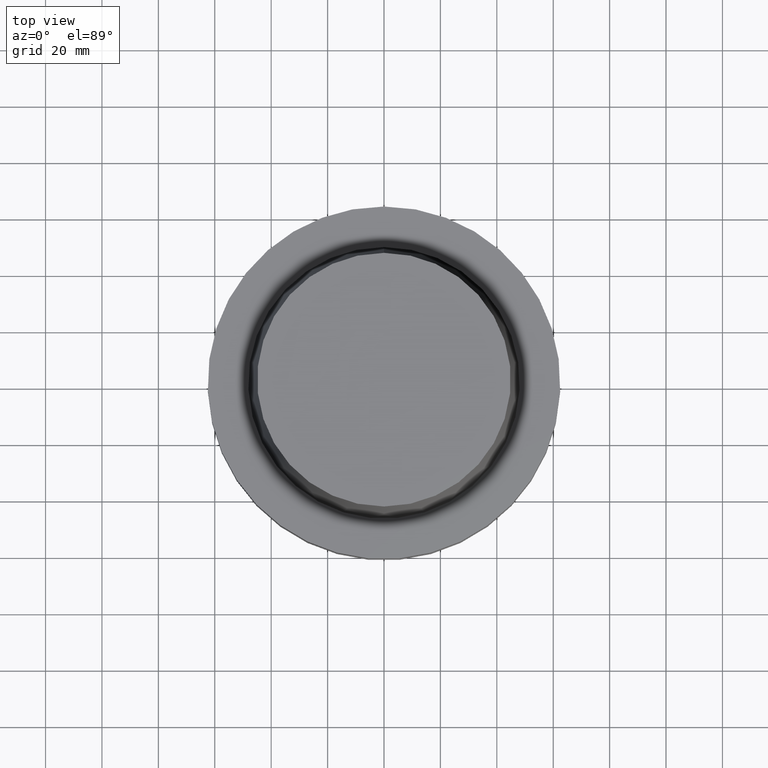
[diagram: clean part render]
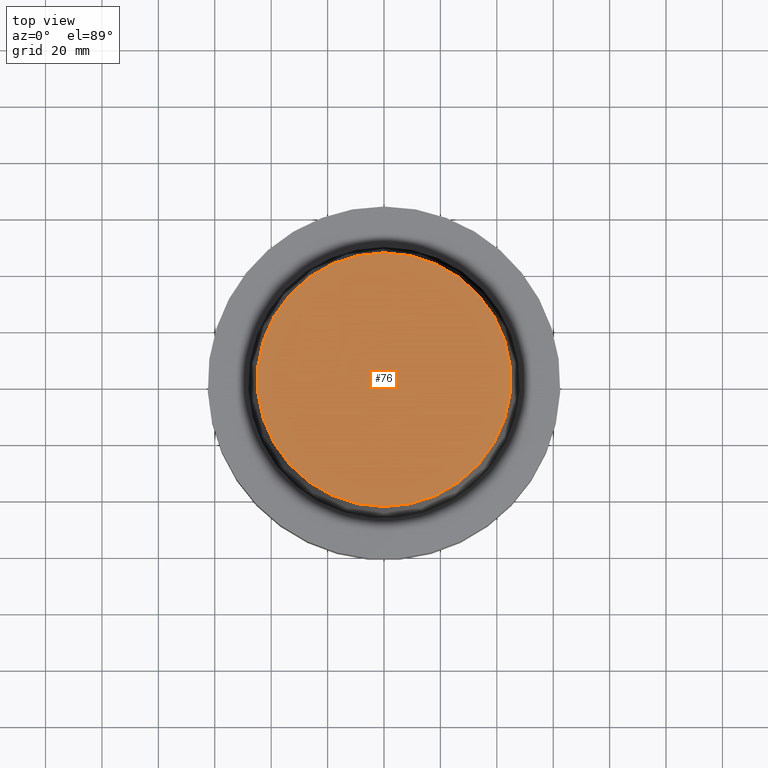
[diagram: same view with one face highlighted and labeled with its STEP entity id]
A machine part, top view. The second image highlights one B-rep face of the part: STEP entity #76.
In plain terms, the highlighted planar face has unit normal (-0, -0, 1).
Its self-contained STEP definition (entity closure, byte-faithful):
#76=ADVANCED_FACE('Unnamed[1]',(#193),#194,.T.);
#106=EDGE_CURVE('Unnamed[1]',#240,#240,#241,.T.);
#193=FACE_OUTER_BOUND('',#347,.T.);
#194=PLANE('',#348);
#240=VERTEX_POINT('',#406);
#241=CIRCLE('',#407,44.9779398797591);
#347=EDGE_LOOP('',(#523));
#348=AXIS2_PLACEMENT_3D('',#524,#525,#526);
#406=CARTESIAN_POINT('',(-3.85763741731416E-015,44.9779398797591,62.9999999999999));
#407=AXIS2_PLACEMENT_3D('',#577,#578,#579);
#523=ORIENTED_EDGE('',*,*,#106,.F.);
#524=CARTESIAN_POINT('',(-3.85763741731416E-015,22.4889699398795,62.9999999999999));
#525=DIRECTION('',(-6.12323399573677E-017,-1.22464679914735E-016,1.0));
#526=DIRECTION('',(1.23259516440783E-032,-1.0,-1.22464679914735E-016));
#577=CARTESIAN_POINT('',(-3.85763741731416E-015,-7.71527483462831E-015,62.9999999999999));
#578=DIRECTION('',(6.12323399573677E-017,1.22464679914735E-016,-1.0));
#579=DIRECTION('',(-1.23259516440783E-032,1.0,1.22464679914735E-016));